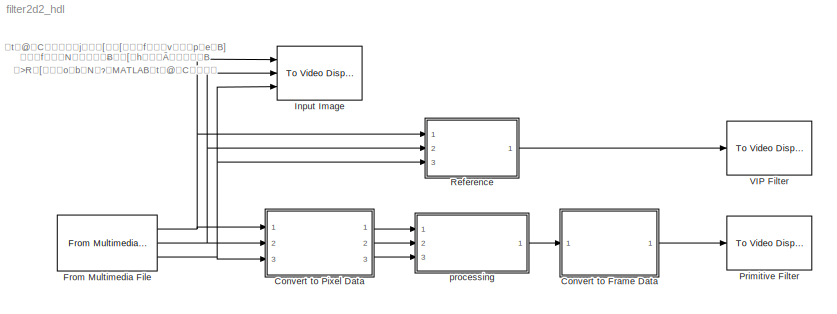
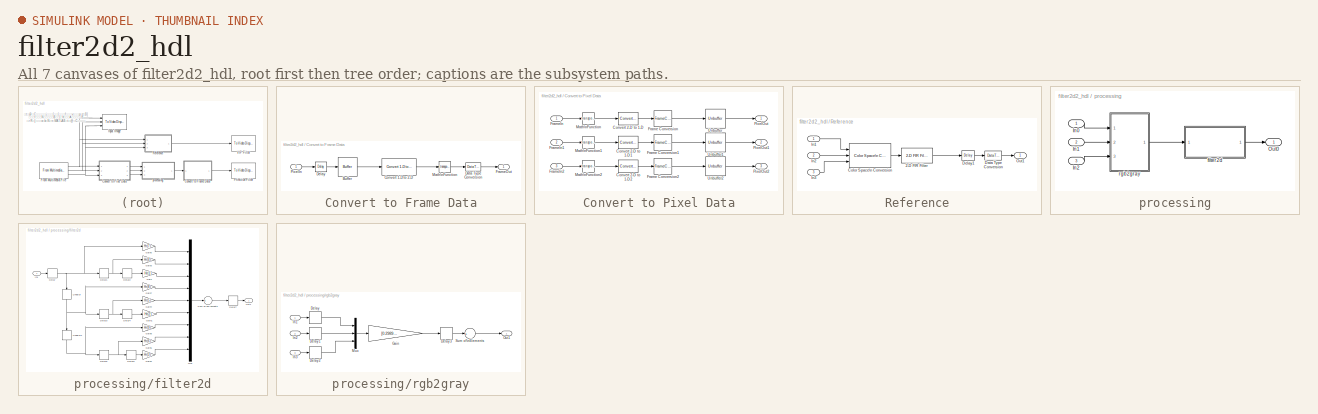
[diagram: thumbnail index - all 7 canvases of the model, root first then tree order]
MODEL filter2d2_hdl
KIND model
CONFIG PreLoadFcn = Param_filter
BLOCK [SubSystem] Convert to Frame Data
  Ports = [1, 1]
  RequestExecContextInheritance = off
  SID = 284
BLOCK [Buffer] Convert to Frame Data/Buffer
  N = 160*120
  SID = 286
BLOCK [Reference] Convert to Frame Data/Convert 1-D to 2-D  REF=dspsigattribs/Convert 1-D to 2-D
  M = 160
  N = 120
  Ports = [1, 1]
  SID = 287
  SourceBlock = dspsigattribs/Convert 1-D to 2-D
  SourceType = Convert 1-D to 2-D
  frameBasedOut = off
BLOCK [DataTypeConversion] Convert to Frame Data/Data Type Conversion
  OutDataTypeStr = uint8
  RndMeth = Floor
  SID = 289
BLOCK [Reference] Convert to Frame Data/Delay  REF=dspsigops/Delay
  InputProcessing = Inherited (this choice will be removed - see release notes)
  Ports = [1, 1]
  SID = 291
  SourceBlock = dspsigops/Delay
  SourceType = Delay
  UserData = DataTag0
  UserDataPersistent = on
  delay = 120*160-(160+2+3)
  dif_ic_for_ch = off
  dif_ic_for_dly = off
  dly_unit = Samples
  ic = 0
  ic_detail = off
  reset_popup = None
BLOCK [Outport] Convert to Frame Data/FrameOut
  IconDisplay = Port number
  SID = 293
BLOCK [Math] Convert to Frame Data/Math\nFunction
  Operator = transpose
  Ports = [1, 1]
  SID = 292
BLOCK [Inport] Convert to Frame Data/PixelIn
  IconDisplay = Port number
  SID = 285
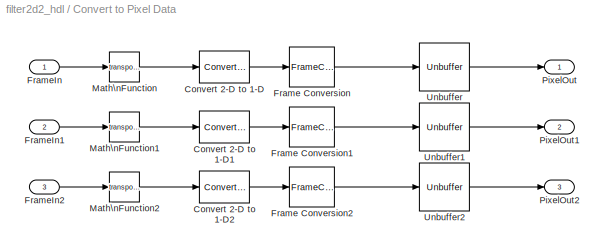
BLOCK [SubSystem] Convert to Pixel Data
  Ports = [3, 3]
  RequestExecContextInheritance = off
  SID = 294
BLOCK [Reference] Convert to Pixel Data/Convert 2-D to 1-D  REF=dspsigattribs/Convert 2-D to 1-D
  Ports = [1, 1]
  SID = 297
  SourceBlock = dspsigattribs/Convert 2-D to 1-D
  SourceType = Convert 2-D to 1-D
BLOCK [Reference] Convert to Pixel Data/Convert 2-D to 1-D1  REF=dspsigattribs/Convert 2-D to 1-D
  Ports = [1, 1]
  SID = 339
  SourceBlock = dspsigattribs/Convert 2-D to 1-D
  SourceType = Convert 2-D to 1-D
BLOCK [Reference] Convert to Pixel Data/Convert 2-D to 1-D2  REF=dspsigattribs/Convert 2-D to 1-D
  Ports = [1, 1]
  SID = 345
  SourceBlock = dspsigattribs/Convert 2-D to 1-D
  SourceType = Convert 2-D to 1-D
BLOCK [FrameConversion] Convert to Pixel Data/Frame Conversion
  Ports = [1, 1]
  SID = 298
BLOCK [FrameConversion] Convert to Pixel Data/Frame Conversion1
  Ports = [1, 1]
  SID = 340
BLOCK [FrameConversion] Convert to Pixel Data/Frame Conversion2
  Ports = [1, 1]
  SID = 346
BLOCK [Inport] Convert to Pixel Data/FrameIn
  IconDisplay = Port number
  SID = 295
BLOCK [Inport] Convert to Pixel Data/FrameIn1
  IconDisplay = Port number
  Port = 2
  SID = 338
BLOCK [Inport] Convert to Pixel Data/FrameIn2
  IconDisplay = Port number
  Port = 3
  SID = 344
BLOCK [Math] Convert to Pixel Data/Math\nFunction
  Operator = transpose
  Ports = [1, 1]
  SID = 299
BLOCK [Math] Convert to Pixel Data/Math\nFunction1
  Operator = transpose
  Ports = [1, 1]
  SID = 341
BLOCK [Math] Convert to Pixel Data/Math\nFunction2
  Operator = transpose
  Ports = [1, 1]
  SID = 347
BLOCK [Outport] Convert to Pixel Data/PixelOut
  IconDisplay = Port number
  SID = 301
BLOCK [Outport] Convert to Pixel Data/PixelOut1
  IconDisplay = Port number
  Port = 2
  SID = 343
BLOCK [Outport] Convert to Pixel Data/PixelOut2
  IconDisplay = Port number
  Port = 3
  SID = 349
BLOCK [Unbuffer] Convert to Pixel Data/Unbuffer
  Ports = [1, 1]
  SID = 300
BLOCK [Unbuffer] Convert to Pixel Data/Unbuffer1
  Ports = [1, 1]
  SID = 342
BLOCK [Unbuffer] Convert to Pixel Data/Unbuffer2
  Ports = [1, 1]
  SID = 348
BLOCK [Reference] From Multimedia File  REF=dspvision/From Multimedia File
  Ports = [0, 3]
  SID = 157
  SourceBlock = dspvision/From Multimedia File
  SourceType = From Multimedia File
  audioDataType = int16
  audioFrameSize = 1024
  colorVideoFormat = Separate color signals
  computeAudioFrameSize = off
  dataOrg = Column-major
  fourcc = RGB
  inheritSampleTime = off
  inputFilename = vipmen.avi
  isIntensityVideo = off
  loop = on
  noAudioOutput = off
  numPlays = inf
  outSamplingMode = Frame based
  outputEOF = off
  outputStreams = Video only
  userDefinedSampleTime = 1/24
  videoDataType = uint8
BLOCK [Reference] Input Image  REF=visionsinks/To Video Display
  OutputDevice = On-screen video monitor
  Ports = [3]
  SID = 155
  SourceBlock = visionsinks/To Video Display
  SourceType = To Video Display
  dataOrg = Column-major
  fullScreen = off
  imagePorts = Separate color signals
  inputColorFormat = RGB
  inputType = Obsolete
  isWindowOpen = on
  openAtMdlStart = on
  saveWindowSize = off
  videoWindowHeight = 120
  videoWindowWidth = 160
  videoWindowX = 367
  videoWindowY = 43
BLOCK [Reference] Primitive Filter  REF=visionsinks/To Video Display
  OutputDevice = On-screen video monitor
  Ports = [1]
  SID = 156
  SourceBlock = visionsinks/To Video Display
  SourceType = To Video Display
  dataOrg = Column-major
  fullScreen = off
  imagePorts = One multidimensional signal
  inputColorFormat = RGB
  inputType = Obsolete
  isWindowOpen = on
  openAtMdlStart = on
  saveWindowSize = off
  videoWindowHeight = 120
  videoWindowWidth = 160
  videoWindowX = 920
  videoWindowY = 41
BLOCK [SubSystem] Reference
  Ports = [3, 1]
  RequestExecContextInheritance = off
  SID = 332
BLOCK [Reference] Reference/2-D FIR Filter  REF=visionfilter/2-D FIR Filter
  LockScale = off
  Ports = [1, 1]
  SID = 334
  SourceBlock = visionfilter/2-D FIR Filter
  SourceType = 2-D FIR Filter
  accumDataTypeStr = Inherit: Same as product output
  accumFracLength = 10
  accumLastDataTypeStr = Inherit: Same as product output
  accumMode = Same as product output
  accumWordLength = 32
  filtSrc = Specify via dialog
  filterMtrx = Hr
  firstCoeffDataTypeStr = fixdt(1,8,4)
  firstCoeffFracLength = 4
  firstCoeffLastDataTypeStr = fixdt(1,8,4)
  firstCoeffMax = []
  firstCoeffMin = []
  firstCoeffMode = Binary point scaling
  firstCoeffSignedness = Signed
  firstCoeffWordLength = 8
  horizontalFilter = [4 0]
  method = Convolution
  outSize = Same as input port I
  outputDataTypeStr = fixdt([],30,12)
  outputFracLength = 12
  outputLastDataTypeStr = fixdt([],30,12)
  outputMax = []
  outputMin = []
  outputMode = Binary point scaling
  outputSignedness = Auto
  outputWordLength = 30
  overflowMode = on
  padSrc = Specify via dialog
  padType = Constant
  padVal = 0
  prodOutputDataTypeStr = fixdt([],16,4)
  prodOutputFracLength = 4
  prodOutputLastDataTypeStr = fixdt([],16,4)
  prodOutputMode = Binary point scaling
  prodOutputWordLength = 16
  roundingMode = Floor
  separable = off
  verticalFilter = [4 0]
BLOCK [Reference] Reference/Color Space\n Conversion  REF=visionconversions/Color Space\n Conversion
  Ports = [3, 1]
  SID = 364
  SourceBlock = visionconversions/Color Space\n Conversion
  SourceType = Color Space Conversion
  conversion = Obsolete
  conversionActive = R'G'B' to intensity
  imagePorts = Separate color signals
  rec = Rec. 601 (SDTV)
  sys = 1125/60/2:1
  wp_str = D65
BLOCK [DataTypeConversion] Reference/Data Type Conversion
  OutDataTypeStr = uint8
  RndMeth = Floor
  SID = 335
BLOCK [Reference] Reference/Delay1  REF=dspsigops/Delay
  InputProcessing = Inherited (this choice will be removed - see release notes)
  Ports = [1, 1]
  SID = 336
  SourceBlock = dspsigops/Delay
  SourceType = Delay
  UserData = DataTag1
  UserDataPersistent = on
  delay = 3
  dif_ic_for_ch = off
  dif_ic_for_dly = off
  dly_unit = Samples
  ic = 0
  ic_detail = off
  reset_popup = None
BLOCK [Inport] Reference/In1
  IconDisplay = Port number
  SID = 333
BLOCK [Inport] Reference/In2
  IconDisplay = Port number
  Port = 2
  SID = 365
BLOCK [Inport] Reference/In3
  IconDisplay = Port number
  Port = 3
  SID = 366
BLOCK [Outport] Reference/Out1
  IconDisplay = Port number
  SID = 337
BLOCK [Reference] VIP Filter  REF=visionsinks/To Video Display
  OutputDevice = On-screen video monitor
  Ports = [1]
  SID = 154
  SourceBlock = visionsinks/To Video Display
  SourceType = To Video Display
  dataOrg = Column-major
  fullScreen = off
  imagePorts = One multidimensional signal
  inputColorFormat = RGB
  inputType = Obsolete
  isWindowOpen = on
  openAtMdlStart = on
  saveWindowSize = off
  videoWindowHeight = 120
  videoWindowWidth = 160
  videoWindowX = 642
  videoWindowY = 41
BLOCK [SubSystem] processing
  Ports = [3, 1]
  RequestExecContextInheritance = off
  SID = 367
BLOCK [Inport] processing/In0
  IconDisplay = Port number
  SID = 394
BLOCK [Inport] processing/In1
  IconDisplay = Port number
  Port = 2
  SID = 409
BLOCK [Inport] processing/In2
  IconDisplay = Port number
  Port = 3
  SID = 410
BLOCK [Outport] processing/Out0
  IconDisplay = Port number
  SID = 390
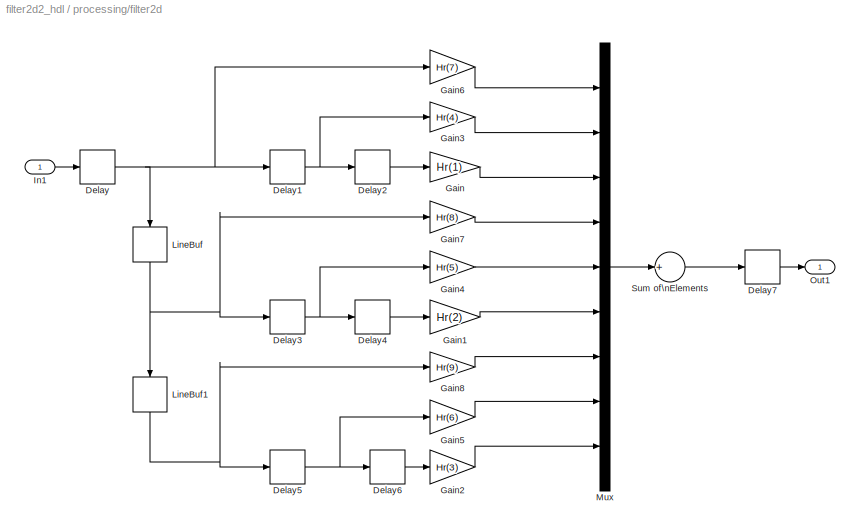
BLOCK [SubSystem] processing/filter2d
  Ports = [1, 1]
  RequestExecContextInheritance = off
  SID = 405
BLOCK [Delay] processing/filter2d/Delay
  DelayLength = 1
  InputPortMap = u0
  Ports = [1, 1]
  SID = 393
BLOCK [Delay] processing/filter2d/Delay1
  DelayLength = 1
  InputPortMap = u0
  Ports = [1, 1]
  SID = 396
BLOCK [Delay] processing/filter2d/Delay2
  DelayLength = 1
  InputPortMap = u0
  Ports = [1, 1]
  SID = 399
BLOCK [Delay] processing/filter2d/Delay3
  DelayLength = 1
  InputPortMap = u0
  Ports = [1, 1]
  SID = 400
BLOCK [Delay] processing/filter2d/Delay4
  DelayLength = 1
  InputPortMap = u0
  Ports = [1, 1]
  SID = 401
BLOCK [Delay] processing/filter2d/Delay5
  DelayLength = 1
  InputPortMap = u0
  Ports = [1, 1]
  SID = 402
BLOCK [Delay] processing/filter2d/Delay6
  DelayLength = 1
  InputPortMap = u0
  Ports = [1, 1]
  SID = 403
BLOCK [Delay] processing/filter2d/Delay7
  DelayLength = 1
  InputPortMap = u0
  Ports = [1, 1]
  SID = 404
BLOCK [Gain] processing/filter2d/Gain
  Gain = Hr(1)
  OutDataTypeStr = Inherit: Inherit via internal rule
  ParamDataTypeStr = fixdt(1,8,4)
  RndMeth = Nearest
  SID = 369
  SaturateOnIntegerOverflow = off
BLOCK [Gain] processing/filter2d/Gain1
  Gain = Hr(2)
  OutDataTypeStr = Inherit: Inherit via internal rule
  ParamDataTypeStr = fixdt(1,8,4)
  RndMeth = Nearest
  SID = 370
  SaturateOnIntegerOverflow = off
BLOCK [Gain] processing/filter2d/Gain2
  Gain = Hr(3)
  OutDataTypeStr = Inherit: Inherit via internal rule
  ParamDataTypeStr = fixdt(1,8,4)
  RndMeth = Nearest
  SID = 371
  SaturateOnIntegerOverflow = off
BLOCK [Gain] processing/filter2d/Gain3
  Gain = Hr(4)
  OutDataTypeStr = Inherit: Inherit via internal rule
  ParamDataTypeStr = fixdt(1,8,4)
  RndMeth = Nearest
  SID = 372
  SaturateOnIntegerOverflow = off
BLOCK [Gain] processing/filter2d/Gain4
  Gain = Hr(5)
  OutDataTypeStr = Inherit: Inherit via internal rule
  ParamDataTypeStr = fixdt(1,8,4)
  RndMeth = Nearest
  SID = 373
  SaturateOnIntegerOverflow = off
BLOCK [Gain] processing/filter2d/Gain5
  Gain = Hr(6)
  OutDataTypeStr = Inherit: Inherit via internal rule
  ParamDataTypeStr = fixdt(1,8,4)
  RndMeth = Nearest
  SID = 374
  SaturateOnIntegerOverflow = off
BLOCK [Gain] processing/filter2d/Gain6
  Gain = Hr(7)
  OutDataTypeStr = Inherit: Inherit via internal rule
  ParamDataTypeStr = fixdt(1,8,4)
  RndMeth = Nearest
  SID = 375
  SaturateOnIntegerOverflow = off
BLOCK [Gain] processing/filter2d/Gain7
  Gain = Hr(8)
  OutDataTypeStr = Inherit: Inherit via internal rule
  ParamDataTypeStr = fixdt(1,8,4)
  RndMeth = Nearest
  SID = 376
  SaturateOnIntegerOverflow = off
BLOCK [Gain] processing/filter2d/Gain8
  Gain = Hr(9)
  OutDataTypeStr = Inherit: Inherit via internal rule
  ParamDataTypeStr = fixdt(1,8,4)
  RndMeth = Nearest
  SID = 377
  SaturateOnIntegerOverflow = off
BLOCK [Inport] processing/filter2d/In1
  IconDisplay = Port number
  SID = 406
BLOCK [Delay] processing/filter2d/LineBuf
  DelayLength = 160
  InputPortMap = u0
  Ports = [1, 1]
  SID = 397
BLOCK [Delay] processing/filter2d/LineBuf1
  DelayLength = 160
  InputPortMap = u0
  Ports = [1, 1]
  SID = 398
BLOCK [Mux] processing/filter2d/Mux
  DisplayOption = bar
  Inputs = 9
  Ports = [9, 1]
  SID = 388
BLOCK [Outport] processing/filter2d/Out1
  IconDisplay = Port number
  SID = 407
BLOCK [Sum] processing/filter2d/Sum of\nElements
  InputSameDT = off
  Inputs = +
  OutDataTypeStr = Inherit: Inherit via internal rule
  Ports = [1, 1]
  RndMeth = Nearest
  SID = 389
  SaturateOnIntegerOverflow = off
BLOCK [SubSystem] processing/rgb2gray
  Ports = [3, 1]
  RequestExecContextInheritance = off
  SID = 417
BLOCK [Delay] processing/rgb2gray/Delay
  DelayLength = 1
  InputPortMap = u0
  Ports = [1, 1]
  SID = 408
BLOCK [Delay] processing/rgb2gray/Delay1
  DelayLength = 1
  InputPortMap = u0
  Ports = [1, 1]
  SID = 411
BLOCK [Delay] processing/rgb2gray/Delay2
  DelayLength = 1
  InputPortMap = u0
  Ports = [1, 1]
  SID = 412
BLOCK [Delay] processing/rgb2gray/Delay3
  DelayLength = 1
  InputPortMap = u0
  Ports = [1, 1]
  SID = 422
BLOCK [Gain] processing/rgb2gray/Gain
  Gain = [0.2989 0.5870 0.1140]
  OutDataTypeStr = Inherit: Inherit via internal rule
  ParamDataTypeStr = Inherit: Inherit via internal rule
  SID = 415
  SaturateOnIntegerOverflow = off
BLOCK [Inport] processing/rgb2gray/In1
  IconDisplay = Port number
  SID = 418
BLOCK [Inport] processing/rgb2gray/In2
  IconDisplay = Port number
  Port = 2
  SID = 419
BLOCK [Inport] processing/rgb2gray/In3
  IconDisplay = Port number
  Port = 3
  SID = 421
BLOCK [Mux] processing/rgb2gray/Mux
  DisplayOption = bar
  Inputs = 3
  Ports = [3, 1]
  SID = 413
BLOCK [Outport] processing/rgb2gray/Out1
  IconDisplay = Port number
  SID = 420
BLOCK [Sum] processing/rgb2gray/Sum of\nElements
  InputSameDT = off
  Inputs = +
  OutDataTypeStr = Inherit: Inherit via internal rule
  Ports = [1, 1]
  SID = 414
  SaturateOnIntegerOverflow = off
ANNOTATION (root): t@Cj [Ì[fvpeB]\nËR[obNÉÄMATLABt@Cð\nfN®É[hµÄ¢Ü·B
LINE Convert to Frame Data/Buffer:1 -> Convert to Frame Data/Convert 1-D to 2-D:1
LINE Convert to Frame Data/Convert 1-D to 2-D:1 -> Convert to Frame Data/Math\nFunction:1
LINE Convert to Frame Data/Data Type Conversion:1 -> Convert to Frame Data/FrameOut:1
LINE Convert to Frame Data/Delay:1 -> Convert to Frame Data/Buffer:1
LINE Convert to Frame Data/Math\nFunction:1 -> Convert to Frame Data/Data Type Conversion:1
LINE Convert to Frame Data/PixelIn:1 -> Convert to Frame Data/Delay:1
LINE Convert to Frame Data:1 -> Primitive Filter:1
LINE Convert to Pixel Data/Convert 2-D to 1-D1:1 -> Convert to Pixel Data/Frame Conversion1:1
LINE Convert to Pixel Data/Convert 2-D to 1-D2:1 -> Convert to Pixel Data/Frame Conversion2:1
LINE Convert to Pixel Data/Convert 2-D to 1-D:1 -> Convert to Pixel Data/Frame Conversion:1
LINE Convert to Pixel Data/Frame Conversion1:1 -> Convert to Pixel Data/Unbuffer1:1
LINE Convert to Pixel Data/Frame Conversion2:1 -> Convert to Pixel Data/Unbuffer2:1
LINE Convert to Pixel Data/Frame Conversion:1 -> Convert to Pixel Data/Unbuffer:1
LINE Convert to Pixel Data/FrameIn1:1 -> Convert to Pixel Data/Math\nFunction1:1
LINE Convert to Pixel Data/FrameIn2:1 -> Convert to Pixel Data/Math\nFunction2:1
LINE Convert to Pixel Data/FrameIn:1 -> Convert to Pixel Data/Math\nFunction:1
LINE Convert to Pixel Data/Math\nFunction1:1 -> Convert to Pixel Data/Convert 2-D to 1-D1:1
LINE Convert to Pixel Data/Math\nFunction2:1 -> Convert to Pixel Data/Convert 2-D to 1-D2:1
LINE Convert to Pixel Data/Math\nFunction:1 -> Convert to Pixel Data/Convert 2-D to 1-D:1
LINE Convert to Pixel Data/Unbuffer1:1 -> Convert to Pixel Data/PixelOut1:1
LINE Convert to Pixel Data/Unbuffer2:1 -> Convert to Pixel Data/PixelOut2:1
LINE Convert to Pixel Data/Unbuffer:1 -> Convert to Pixel Data/PixelOut:1
LINE Convert to Pixel Data:1 -> processing:1
LINE Convert to Pixel Data:2 -> processing:2
LINE Convert to Pixel Data:3 -> processing:3
NET From Multimedia File:1 -> Convert to Pixel Data:1, Input Image:1, Reference:1
NET From Multimedia File:2 -> Convert to Pixel Data:2, Input Image:2, Reference:2
NET From Multimedia File:3 -> Convert to Pixel Data:3, Input Image:3, Reference:3
LINE Reference/2-D FIR Filter:1 -> Reference/Delay1:1
LINE Reference/Color Space\n Conversion:1 -> Reference/2-D FIR Filter:1
LINE Reference/Data Type Conversion:1 -> Reference/Out1:1
LINE Reference/Delay1:1 -> Reference/Data Type Conversion:1
LINE Reference/In1:1 -> Reference/Color Space\n Conversion:1
LINE Reference/In2:1 -> Reference/Color Space\n Conversion:2
LINE Reference/In3:1 -> Reference/Color Space\n Conversion:3
LINE Reference:1 -> VIP Filter:1
LINE processing/In0:1 -> processing/rgb2gray:1
LINE processing/In1:1 -> processing/rgb2gray:2
LINE processing/In2:1 -> processing/rgb2gray:3
NET processing/filter2d/Delay1:1 -> processing/filter2d/Delay2:1, processing/filter2d/Gain3:1
LINE processing/filter2d/Delay2:1 -> processing/filter2d/Gain:1
NET processing/filter2d/Delay3:1 -> processing/filter2d/Delay4:1, processing/filter2d/Gain4:1
LINE processing/filter2d/Delay4:1 -> processing/filter2d/Gain1:1
NET processing/filter2d/Delay5:1 -> processing/filter2d/Delay6:1, processing/filter2d/Gain5:1
LINE processing/filter2d/Delay6:1 -> processing/filter2d/Gain2:1
LINE processing/filter2d/Delay7:1 -> processing/filter2d/Out1:1
NET processing/filter2d/Delay:1 -> processing/filter2d/Delay1:1, processing/filter2d/Gain6:1, processing/filter2d/LineBuf:1
LINE processing/filter2d/Gain1:1 -> processing/filter2d/Mux:6
LINE processing/filter2d/Gain2:1 -> processing/filter2d/Mux:9
LINE processing/filter2d/Gain3:1 -> processing/filter2d/Mux:2
LINE processing/filter2d/Gain4:1 -> processing/filter2d/Mux:5
LINE processing/filter2d/Gain5:1 -> processing/filter2d/Mux:8
LINE processing/filter2d/Gain6:1 -> processing/filter2d/Mux:1
LINE processing/filter2d/Gain7:1 -> processing/filter2d/Mux:4
LINE processing/filter2d/Gain8:1 -> processing/filter2d/Mux:7
LINE processing/filter2d/Gain:1 -> processing/filter2d/Mux:3
LINE processing/filter2d/In1:1 -> processing/filter2d/Delay:1
NET processing/filter2d/LineBuf1:1 -> processing/filter2d/Delay5:1, processing/filter2d/Gain8:1
NET processing/filter2d/LineBuf:1 -> processing/filter2d/Delay3:1, processing/filter2d/Gain7:1, processing/filter2d/LineBuf1:1
LINE processing/filter2d/Mux:1 -> processing/filter2d/Sum of\nElements:1
LINE processing/filter2d/Sum of\nElements:1 -> processing/filter2d/Delay7:1
LINE processing/filter2d:1 -> processing/Out0:1
LINE processing/rgb2gray/Delay1:1 -> processing/rgb2gray/Mux:2
LINE processing/rgb2gray/Delay2:1 -> processing/rgb2gray/Mux:3
LINE processing/rgb2gray/Delay3:1 -> processing/rgb2gray/Sum of\nElements:1
LINE processing/rgb2gray/Delay:1 -> processing/rgb2gray/Mux:1
LINE processing/rgb2gray/Gain:1 -> processing/rgb2gray/Delay3:1
LINE processing/rgb2gray/In1:1 -> processing/rgb2gray/Delay:1
LINE processing/rgb2gray/In2:1 -> processing/rgb2gray/Delay1:1
LINE processing/rgb2gray/In3:1 -> processing/rgb2gray/Delay2:1
LINE processing/rgb2gray/Mux:1 -> processing/rgb2gray/Gain:1
LINE processing/rgb2gray/Sum of\nElements:1 -> processing/rgb2gray/Out1:1
LINE processing/rgb2gray:1 -> processing/filter2d:1
LINE processing:1 -> Convert to Frame Data:1
note: NET lines group one-source signal fan-out (src -> all destinations, sorted); 1:1 wires keep LINE
